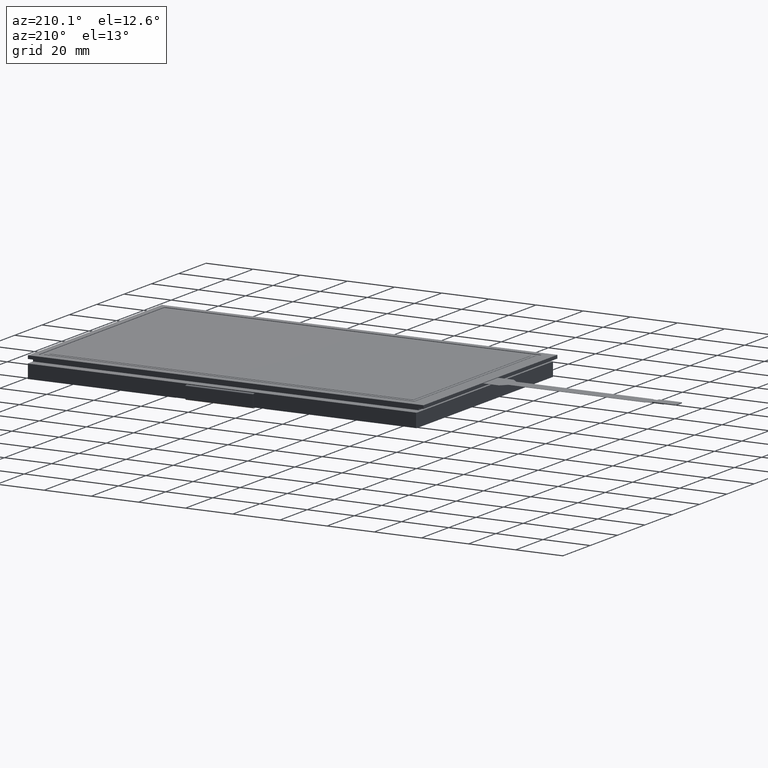
[diagram: clean part render]
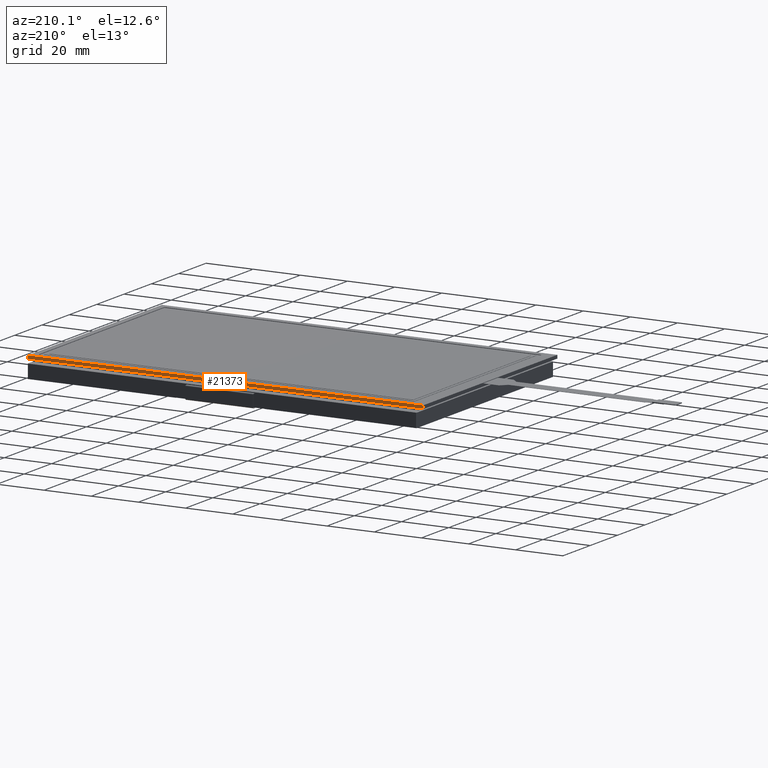
[diagram: same view with one face highlighted and labeled with its STEP entity id]
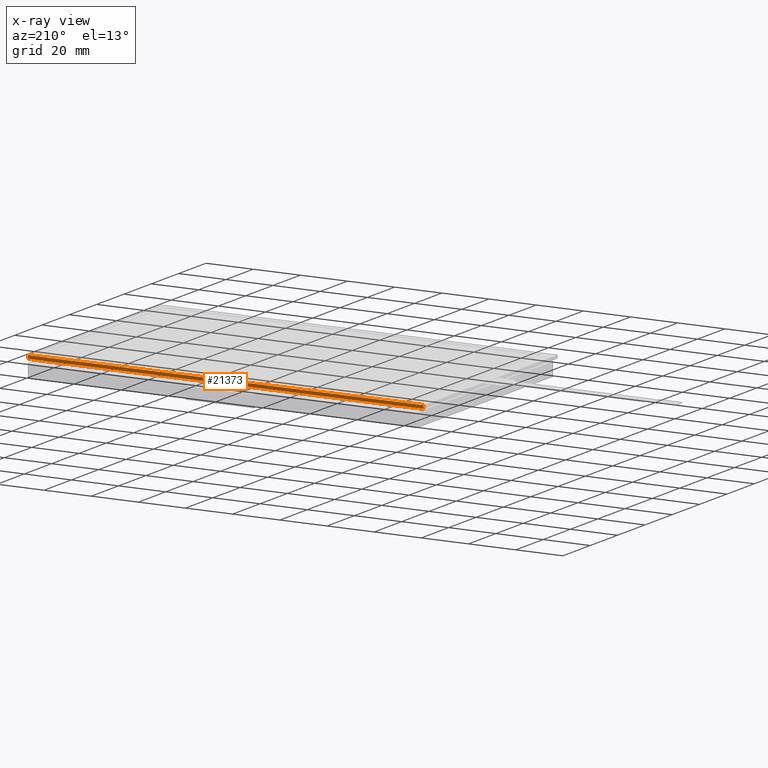
[diagram: x-ray of the same camera — body ghosted, the highlighted face saturated]
A machine part, auxiliary view. The second image highlights one B-rep face of the part: STEP entity #21373.
The next image is the same camera in x-ray: the body ghosted, the highlighted face saturated — about 0% of this face is hidden behind the body in this view.
In plain terms, the highlighted planar face has unit normal (0, 1, 0).
Its self-contained STEP definition (entity closure, byte-faithful):
#893=FACE_OUTER_BOUND('',#2039,.T.);
#2039=EDGE_LOOP('',(#14510,#14511,#14512,#14513));
#3245=LINE('',#30197,#5989);
#3405=LINE('',#30562,#6149);
#3414=LINE('',#30578,#6158);
#3416=LINE('',#30582,#6160);
#5989=VECTOR('',#24230,10.);
#6149=VECTOR('',#24552,10.);
#6158=VECTOR('',#24569,10.);
#6160=VECTOR('',#24575,10.);
#8707=VERTEX_POINT('',#30195);
#8708=VERTEX_POINT('',#30196);
#8831=VERTEX_POINT('',#30560);
#8832=VERTEX_POINT('',#30561);
#10837=EDGE_CURVE('',#8707,#8708,#3245,.T.);
#11018=EDGE_CURVE('',#8831,#8832,#3405,.T.);
#11027=EDGE_CURVE('',#8832,#8707,#3414,.T.);
#11029=EDGE_CURVE('',#8831,#8708,#3416,.T.);
#14510=ORIENTED_EDGE('',*,*,#11018,.F.);
#14511=ORIENTED_EDGE('',*,*,#11029,.T.);
#14512=ORIENTED_EDGE('',*,*,#10837,.F.);
#14513=ORIENTED_EDGE('',*,*,#11027,.F.);
#20441=PLANE('',#22563);
#21373=ADVANCED_FACE('',(#893),#20441,.T.);
#22563=AXIS2_PLACEMENT_3D('',#30583,#24576,#24577);
#24230=DIRECTION('',(1.,-1.20708053394536E-49,0.));
#24552=DIRECTION('',(-1.,1.20708053394536E-49,0.));
#24569=DIRECTION('',(0.,0.,-1.));
#24575=DIRECTION('',(0.,0.,-1.));
#24576=DIRECTION('center_axis',(1.20708053394536E-49,1.,0.));
#24577=DIRECTION('ref_axis',(1.,-1.20708053394536E-49,0.));
#30195=CARTESIAN_POINT('',(-84.95,49.,-1.4));
#30196=CARTESIAN_POINT('',(82.8,49.,-1.4));
#30197=CARTESIAN_POINT('',(82.8,49.,-1.4));
#30560=CARTESIAN_POINT('',(82.8,49.,0.));
#30561=CARTESIAN_POINT('',(-84.95,49.,0.));
#30562=CARTESIAN_POINT('',(82.8,49.,0.));
#30578=CARTESIAN_POINT('',(-84.95,49.,0.));
#30582=CARTESIAN_POINT('',(82.8,49.,0.));
#30583=CARTESIAN_POINT('Origin',(-84.95,49.,0.));